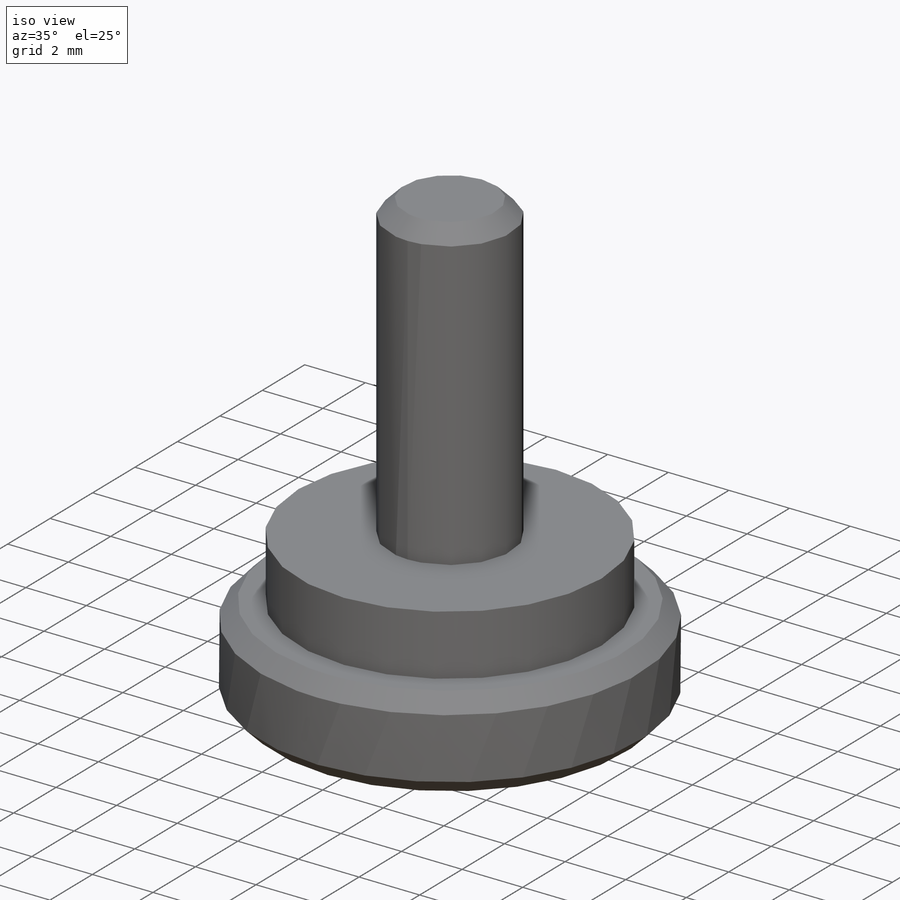
[diagram: iso view]
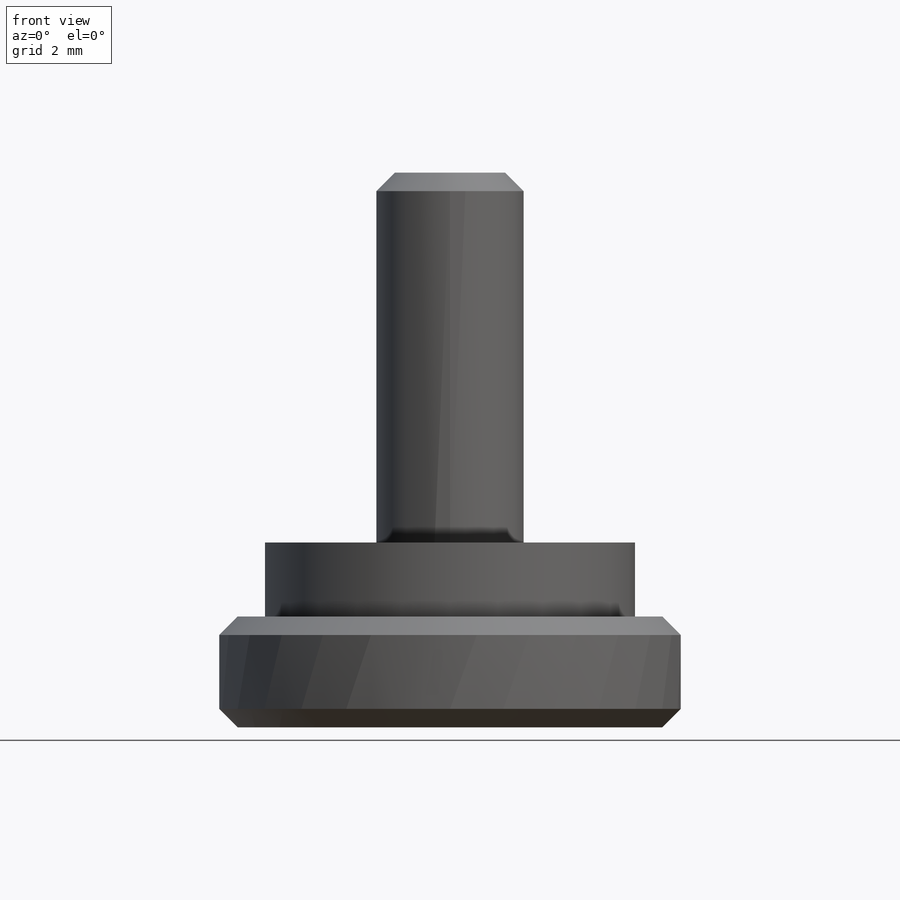
[diagram: front view]
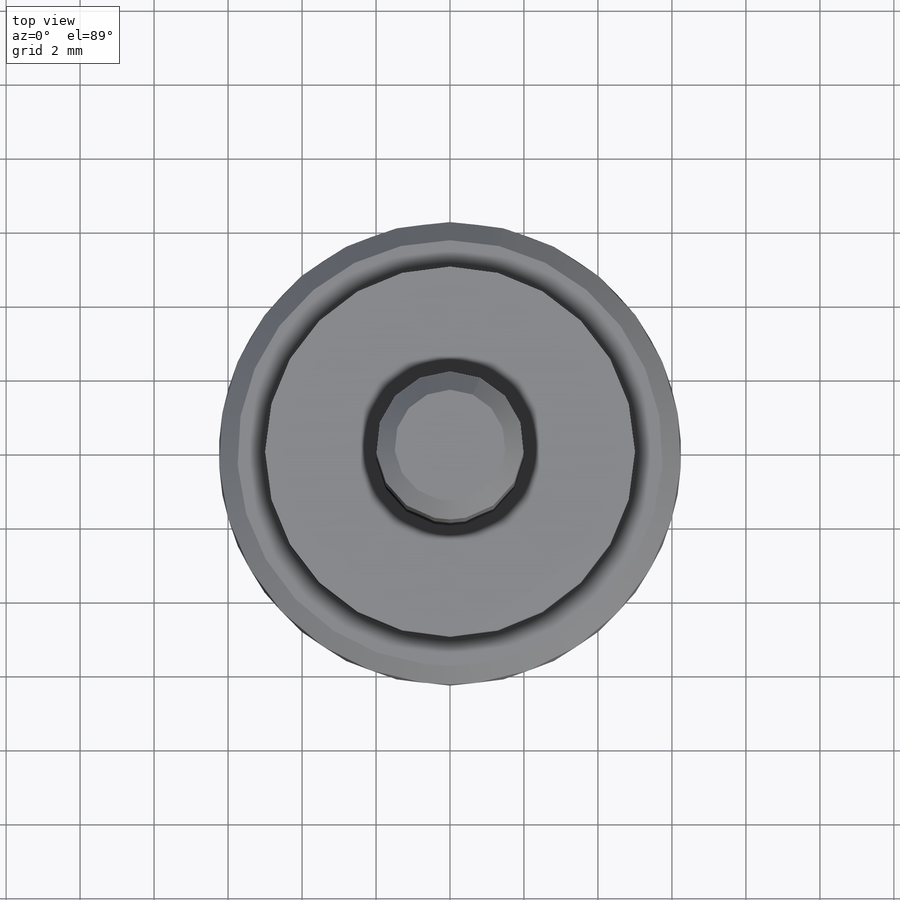
[diagram: top view]
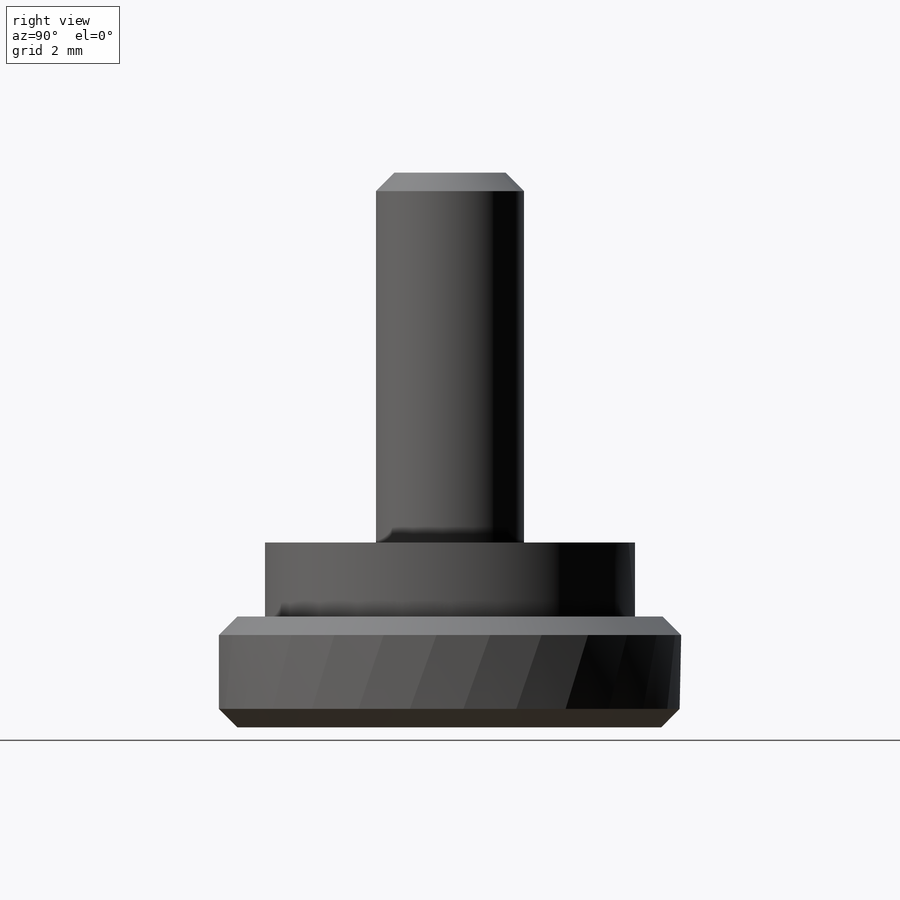
[diagram: right view]
SOLIDWORKS PART (.sldprt)
format: sldprt  version: not decoded by parser v0  size: 170,496 bytes
history: native  units: mm
features: sketch x4, plane x3, extrude x3, chamfer x2, material x1, cut_extrude x1 (+11 scaffold rows collapsed)
feature tree (25):
  scaffold x11  (default folders/planes/origin — collapsed)
  material  "Matériau <non spécifié>"
  plane  "Face"
  plane  "Dessus"
  plane  "Droite"
  sketch  "Esquisse1"  dims[D1=12.5mm]
  extrude  "Extrusion1"  Depth=3mm
  sketch  "Esquisse2"  dims[D1=10.0mm]
  extrude  "Extrusion2"  Depth=2mm
  sketch  "Esquisse3"  dims[D1=4.0mm]
  extrude  "Extrusion3"  Depth=10mm
  chamfer  "Chanfrein1"  Distance=0.5mm Angle=45deg
  chamfer  "Chanfrein2"  Distance=0.5mm Angle=45deg
  sketch  "Esquisse4"  dims[D1=4.0mm]
  cut_extrude  "Extrusion4"  Depth=4mm
decode coverage: 10 of 10 modeling features carry decoded parameters
note: suppression state not decoded; provenance and decode notes live in map.json
